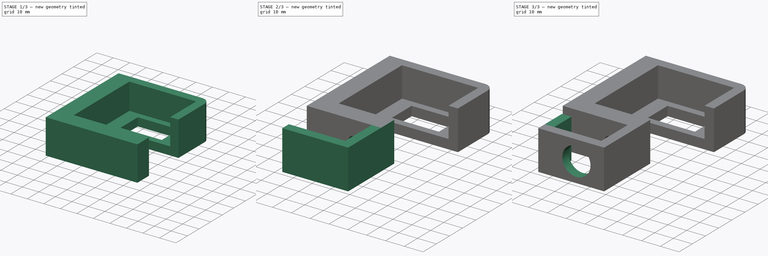
[diagram: build sequence overview — one tinted view per stage of 3, left to right]
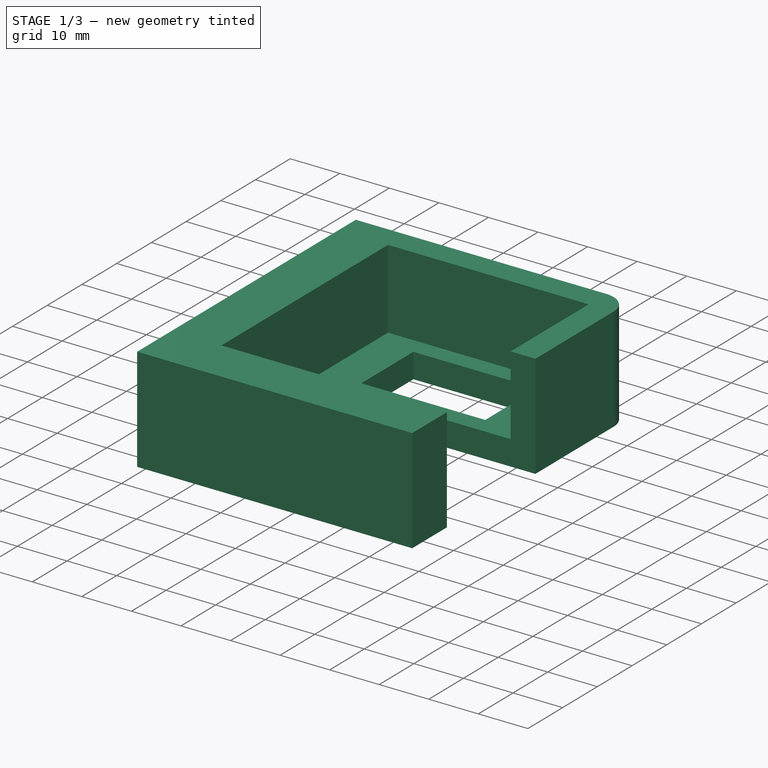
[diagram: stage 1 of 3 — iso view after this stage's code; geometry added in this stage tinted green]
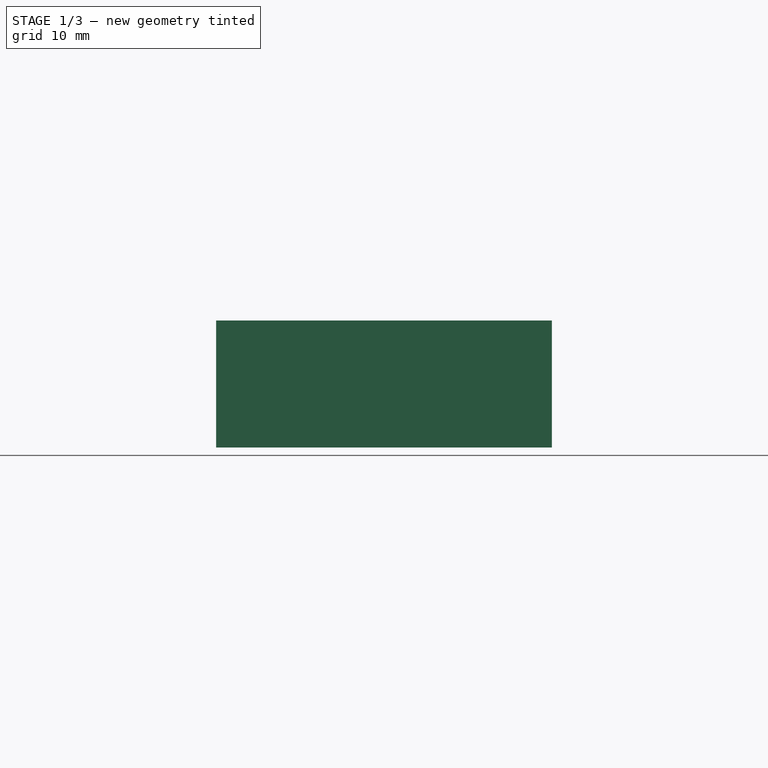
[diagram: stage 1 of 3 — front view after this stage's code; geometry added in this stage tinted green]
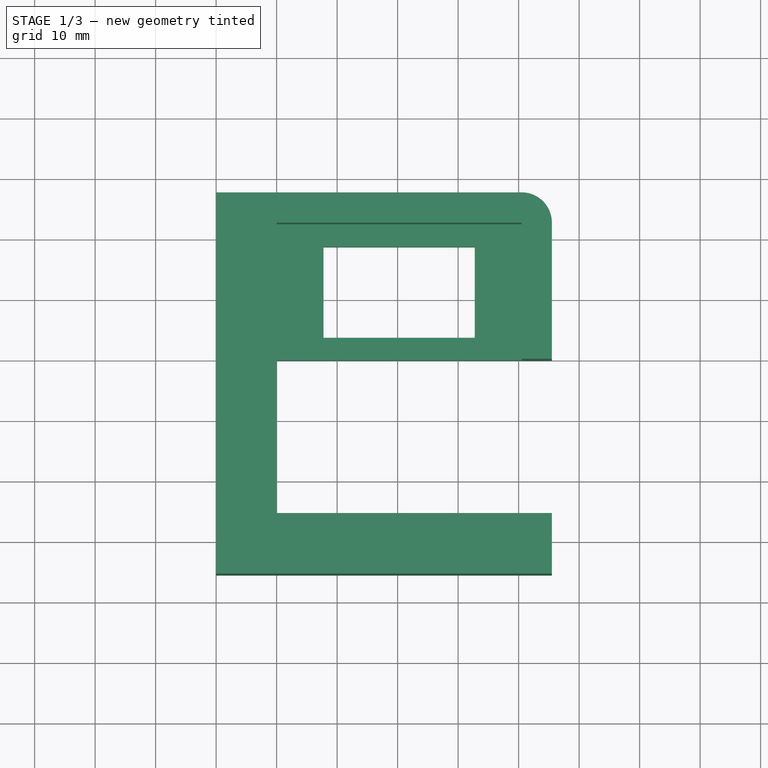
[diagram: stage 1 of 3 — top view after this stage's code; geometry added in this stage tinted green]
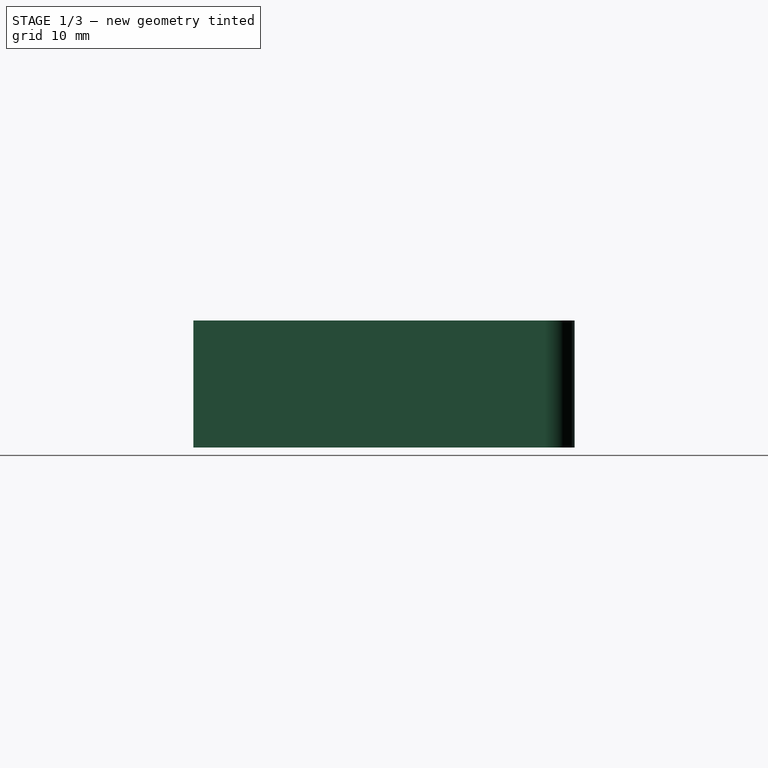
[diagram: stage 1 of 3 — right view after this stage's code; geometry added in this stage tinted green]
FCSTD DOCUMENT  (FreeCAD 0.20R)
Label: usb_hub_side_holder_rshtech_10_ports
License: All rights reserved
LicenseURL: http://en.wikipedia.org/wiki/All_rights_reserved
objects: Sketcher::SketchObject×7, PartDesign::Pad×5, PartDesign::Pocket×2, PartDesign::Body×1
note: 22 computed .brp shape members not serialized (recipe doc carries the construction recipe); baked Part::Feature solids carry a one-line shape summary decoded from their .brp

FEATURE [Sketcher::SketchObject] Sketch
  FullyConstrained = true
  MapMode = 5
  Support = -> [XY_Plane]
  sketch-geometry (24):
    g0: LineSegment StartX=0 StartY=-35.5 StartZ=0 EndX=0 EndY=27.5 EndZ=0
    g1: LineSegment StartX=0 StartY=27.5 StartZ=0 EndX=50.5 EndY=27.5 EndZ=0
    g2: LineSegment StartX=50.5 StartY=27.5 StartZ=0 EndX=50.5 EndY=22.5 EndZ=0
    g3: LineSegment StartX=55.5 StartY=22.5 StartZ=0 EndX=55.5 EndY=0 EndZ=0
    g4: LineSegment StartX=55.5 StartY=0 StartZ=0 EndX=10 EndY=0 EndZ=0
    g5: LineSegment StartX=10 StartY=0 StartZ=0 EndX=10 EndY=-25.5 EndZ=0
    g6: LineSegment StartX=10 StartY=-25.5 StartZ=0 EndX=55.5 EndY=-25.5 EndZ=0
    g7: LineSegment StartX=55.5 StartY=-25.5 StartZ=0 EndX=55.5 EndY=-35.5 EndZ=0
    g8: LineSegment StartX=55.5 StartY=-35.5 StartZ=0 EndX=0 EndY=-35.5 EndZ=0
    g9: LineSegment StartX=17.75 StartY=18.75 StartZ=0 EndX=42.75 EndY=18.75 EndZ=0
    g10: LineSegment StartX=42.75 StartY=18.75 StartZ=0 EndX=42.75 EndY=3.75 EndZ=0
    g11: LineSegment StartX=42.75 StartY=3.75 StartZ=0 EndX=17.75 EndY=3.75 EndZ=0
    g12: LineSegment StartX=17.75 StartY=3.75 StartZ=0 EndX=17.75 EndY=18.75 EndZ=0
    g13: LineSegment StartX=10 StartY=-25.5 StartZ=0 EndX=0 EndY=-25.5 EndZ=0
    g14: LineSegment StartX=10 StartY=0 StartZ=0 EndX=50.5 EndY=0 EndZ=0
    g15: LineSegment StartX=50.5 StartY=0 StartZ=0 EndX=50.5 EndY=22.5 EndZ=0
    g16: LineSegment StartX=50.5 StartY=22.5 StartZ=0 EndX=10 EndY=22.5 EndZ=0
    g17: LineSegment StartX=10 StartY=22.5 StartZ=0 EndX=10 EndY=0 EndZ=0
    g18: LineSegment StartX=17.75 StartY=18.75 StartZ=0 EndX=10 EndY=22.5 EndZ=0
    g19: LineSegment StartX=42.75 StartY=18.75 StartZ=0 EndX=50.5 EndY=22.5 EndZ=0
    g20: LineSegment StartX=42.75 StartY=3.75 StartZ=0 EndX=50.5 EndY=0 EndZ=0
    g21: LineSegment StartX=55.5 StartY=22.5 StartZ=0 EndX=50.5 EndY=22.5 EndZ=0
    g22: ArcOfCircle CenterX=50.5 CenterY=22.5 CenterZ=0 NormalX=0 NormalY=0 NormalZ=1 AngleXU=0 Radius=5 StartAngle=0 EndAngle=1.5708
    g23: LineSegment StartX=55.5 StartY=-25.5 StartZ=0 EndX=55.5 EndY=0 EndZ=0
  constraints (65):
    c: PointOnObject(g0,g-2)
    c: Vertical(g0)
    c: Horizontal(g1)
    c: Coincident(g1,g0)
    c: Coincident(g2,g1)
    c: Vertical(g2)
    c: PointOnObject(g3,g-1)
    c: Vertical(g3)
    c: Coincident(g4,g3)
    c: Horizontal(g4)
    c: Coincident(g5,g4)
    c: Vertical(g5)
    c: Coincident(g6,g5)
    c: Horizontal(g6)
    c: Coincident(g7,g6)
    c: Vertical(g7)
    c: Coincident(g8,g7)
    c: Horizontal(g8)
    c: Coincident(g8,g0)
    c: Coincident(g9,g10)
    c: Coincident(g10,g11)
    c: Coincident(g11,g12)
    c: Coincident(g12,g9)
    c: Horizontal(g9)
    c: Horizontal(g11)
    c: Vertical(g10)
    c: Vertical(g12)
    c: Distance(g9) = 25
    c: Distance(g10) = 15
    c: Distance(g7) = 10
    c: Coincident(g13,g5)
    c: PointOnObject(g13,g0)
    c: Horizontal(g13)
    c: Distance(g13) = 10
    c: Coincident(g14,g15)
    c: Coincident(g15,g16)
    c: Coincident(g16,g17)
    c: Coincident(g17,g14)
    c: Horizontal(g14)
    c: Horizontal(g16)
    c: Vertical(g15)
    c: Vertical(g17)
    c: Coincident(g14,g4)
    c: Distance(g16) = 40.5
    c: Distance(g15) = 22.5
    c: Coincident(g18,g9)
    c: Coincident(g18,g16)
    c: Coincident(g19,g15)
    c: Coincident(g20,g10)
    c: Coincident(g20,g14)
    c: Equal(g19,g20)
    c: Equal(g20,g18)
    c: Coincident(g21,g2)
    c: Horizontal(g21)
    c: Coincident(g9,g19)
    c: Coincident(g2,g15)
    c: Coincident(g3,g21)
    c: Coincident(g22,g2)
    c: Coincident(g22,g1)
    c: Coincident(g22,g3)
    c: Distance(g21) = 5
    c: Distance(g5) = 25.5
    c: Coincident(g23,g6)
    c: Coincident(g23,g3)
    c: Vertical(g23)
FEATURE [PartDesign::Pad] Pad
  Direction = (0,0,1)
  Length = 5
  Length2 = 10
  Profile = -> Sketch
  ReferenceAxis = -> Sketch [N_Axis]
  Type = 0
FEATURE [Sketcher::SketchObject] Sketch001
  ExternalGeometry = -> [Pad]
  FullyConstrained = true
  MapMode = 5
  Placement = pos=(0,0,5) rot=(0,0,1;0rad)
  Support = -> [Pad]
  sketch-geometry (11):
    g0: LineSegment StartX=55.5 StartY=22.5 StartZ=0 EndX=55.5 EndY=0 EndZ=0
    g1: LineSegment StartX=55.5 StartY=0 StartZ=0 EndX=50.5 EndY=0 EndZ=0
    g2: LineSegment StartX=50.5 StartY=0 StartZ=0 EndX=50.5 EndY=22.5 EndZ=0
    g3: LineSegment StartX=50.5 StartY=22.5 StartZ=0 EndX=10 EndY=22.5 EndZ=0
    g4: LineSegment StartX=10 StartY=22.5 StartZ=0 EndX=10 EndY=-25.5 EndZ=0
    g5: ArcOfCircle CenterX=50.5 CenterY=22.5 CenterZ=0 NormalX=0 NormalY=0 NormalZ=1 AngleXU=0 Radius=5 StartAngle=1.18914e-11 EndAngle=1.5708
    g6: LineSegment StartX=50.5 StartY=27.5 StartZ=0 EndX=0 EndY=27.5 EndZ=0
    g7: LineSegment StartX=0 StartY=27.5 StartZ=0 EndX=0 EndY=-35.5 EndZ=0
    g8: LineSegment StartX=0 StartY=-35.5 StartZ=0 EndX=55.5 EndY=-35.5 EndZ=0
    g9: LineSegment StartX=55.5 StartY=-35.5 StartZ=0 EndX=55.5 EndY=-25.5 EndZ=0
    g10: LineSegment StartX=55.5 StartY=-25.5 StartZ=0 EndX=10 EndY=-25.5 EndZ=0
  constraints (25):
    c: Coincident(g-7,g0)
    c: Coincident(g0,g-7)
    c: Coincident(g0,g1)
    c: Horizontal(g1)
    c: Coincident(g1,g2)
    c: Coincident(g2,g-4)
    c: Vertical(g2)
    c: Coincident(g2,g3)
    c: Horizontal(g3)
    c: Coincident(g3,g4)
    c: Coincident(g4,g-5)
    c: Vertical(g4)
    c: PointOnObject(g5,g2)
    c: Coincident(g5,g0)
    c: Coincident(g5,g-8)
    c: Tangent(g5,g6) = -1.5708
    c: Coincident(g6,g7)
    c: Vertical(g7)
    c: Coincident(g7,g8)
    c: Coincident(g8,g-6)
    c: Coincident(g8,g9)
    c: Coincident(g9,g-5)
    c: Coincident(g9,g10)
    c: Coincident(g10,g4)
    c: Coincident(g7,g-6)
FEATURE [PartDesign::Pad] Pad001
  BaseFeature = -> Pad
  Direction = (0,0,1)
  Length = 16
  Length2 = 10
  Profile = -> Sketch001
  ReferenceAxis = -> Sketch001 [N_Axis]
  Type = 0
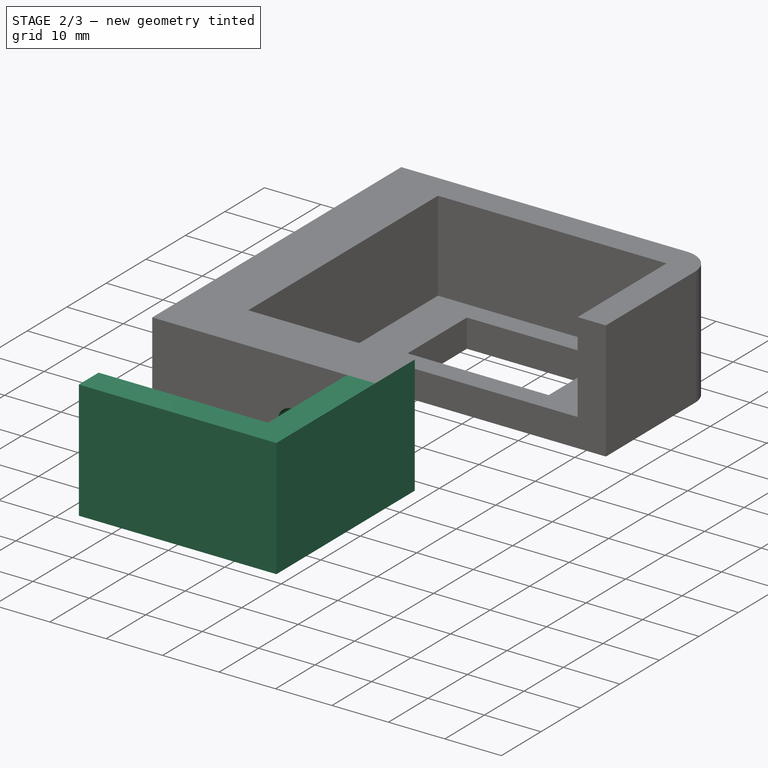
[diagram: stage 2 of 3 — iso view after this stage's code; geometry added in this stage tinted green]
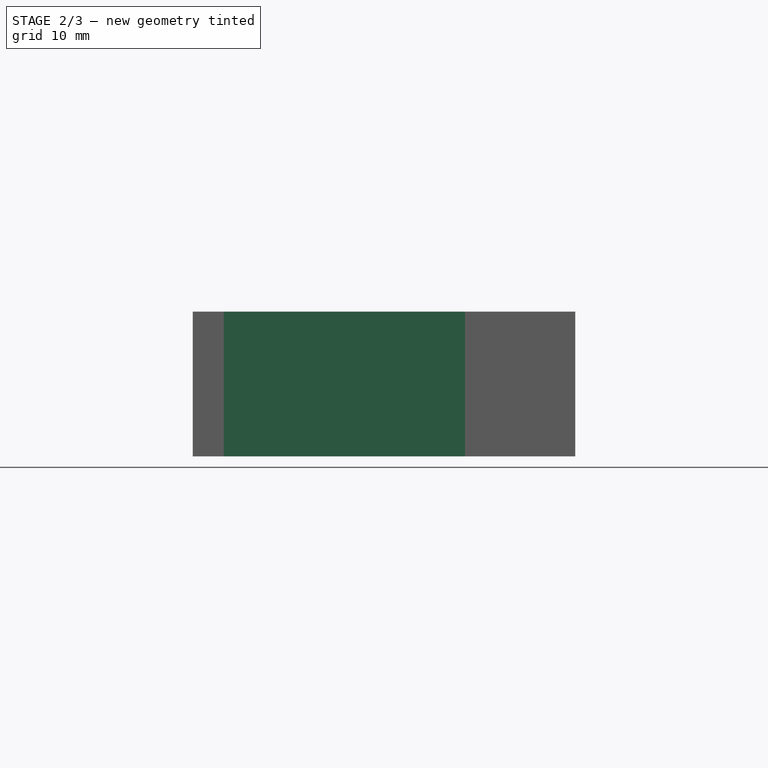
[diagram: stage 2 of 3 — front view after this stage's code; geometry added in this stage tinted green]
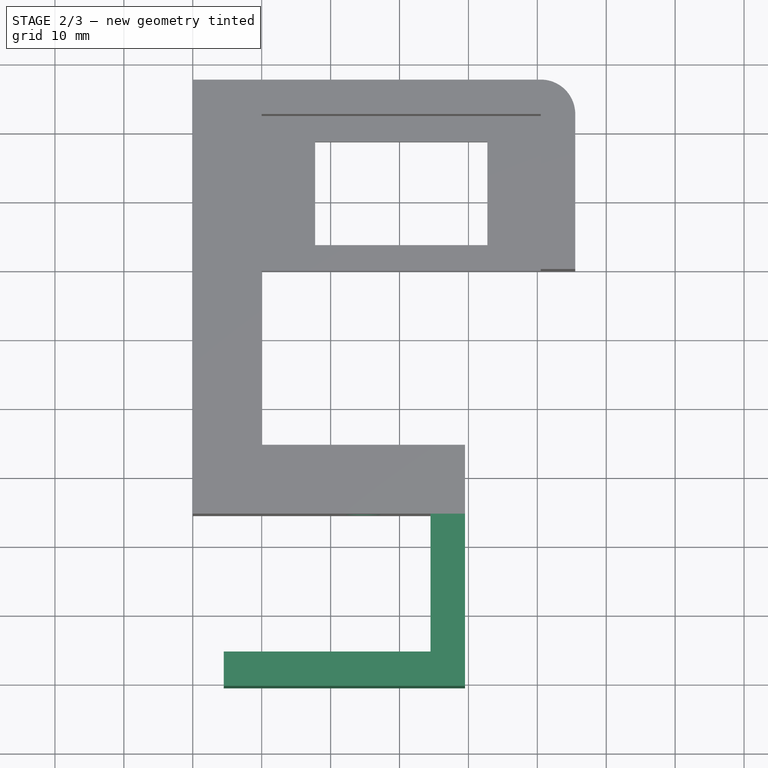
[diagram: stage 2 of 3 — top view after this stage's code; geometry added in this stage tinted green]
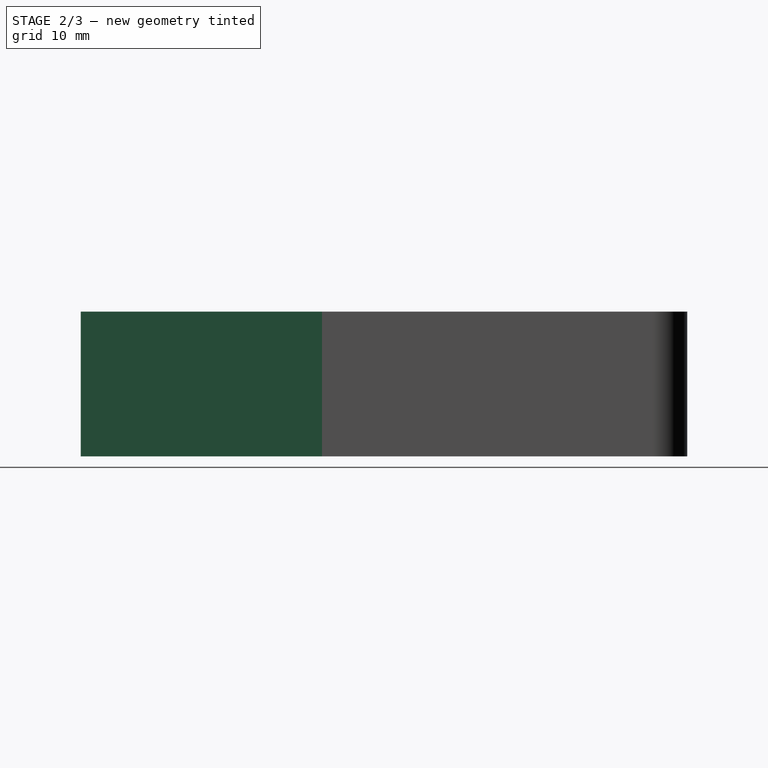
[diagram: stage 2 of 3 — right view after this stage's code; geometry added in this stage tinted green]
FEATURE [Sketcher::SketchObject] Sketch002
  ExternalGeometry = -> [Pad001]
  FullyConstrained = true
  MapMode = 5
  Placement = pos=(0,-35.5,0) rot=(1,0,0;1.5708rad)
  Support = -> [Pad001]
  sketch-geometry (8):
    g0: LineSegment StartX=55.5 StartY=21 StartZ=0 EndX=39.5 EndY=21 EndZ=0
    g1: LineSegment StartX=39.5 StartY=21 StartZ=0 EndX=39.5 EndY=0 EndZ=0
    g2: LineSegment StartX=39.5 StartY=0 StartZ=0 EndX=55.5 EndY=0 EndZ=0
    g3: LineSegment StartX=55.5 StartY=0 StartZ=0 EndX=55.5 EndY=21 EndZ=0
    g4: LineSegment StartX=10 StartY=2.2e-15 StartZ=0 EndX=24.75 EndY=10.5 EndZ=0
    g5: LineSegment StartX=24.75 StartY=10.5 StartZ=0 EndX=39.5 EndY=21 EndZ=0
    g6: LineSegment StartX=39.5 StartY=0 StartZ=0 EndX=24.75 EndY=10.5 EndZ=0
    g7: Circle CenterX=24.75 CenterY=10.5 CenterZ=0 NormalX=0 NormalY=0 NormalZ=1 AngleXU=0 Radius=2.5
  constraints (20):
    c: Coincident(g0,g1)
    c: Coincident(g1,g2)
    c: Coincident(g2,g3)
    c: Coincident(g3,g0)
    c: Horizontal(g0)
    c: Horizontal(g2)
    c: Vertical(g1)
    c: Vertical(g3)
    c: Coincident(g0,g-3)
    c: PointOnObject(g1,g-4)
    c: Distance(g0) = 16
    c: Coincident(g4,g-6)
    c: Coincident(g5,g4)
    c: Coincident(g5,g0)
    c: Coincident(g6,g1)
    c: Coincident(g6,g4)
    c: Equal(g6,g4)
    c: Equal(g4,g5)
    c: Coincident(g7,g4)
    c: Diameter(g7) = 5
FEATURE [PartDesign::Pocket] Pocket
  BaseFeature = -> Pad001
  Direction = (0,1,-2e-16)
  Length = 15
  Length2 = 5
  Profile = -> Sketch002
  ReferenceAxis = -> Sketch002 [N_Axis]
  Type = 0
FEATURE [Sketcher::SketchObject] Sketch003
  ExternalGeometry = -> [Pocket]
  FullyConstrained = true
  MapMode = 5
  Placement = pos=(0,-35.5,0) rot=(1,0,0;1.5708rad)
  Support = -> [Pocket]
  sketch-geometry (4):
    g0: LineSegment StartX=39.5 StartY=21 StartZ=0 EndX=34.5 EndY=21 EndZ=0
    g1: LineSegment StartX=34.5 StartY=21 StartZ=0 EndX=34.5 EndY=0 EndZ=0
    g2: LineSegment StartX=34.5 StartY=0 StartZ=0 EndX=39.5 EndY=0 EndZ=0
    g3: LineSegment StartX=39.5 StartY=0 StartZ=0 EndX=39.5 EndY=21 EndZ=0
  constraints (11):
    c: Coincident(g0,g1)
    c: Coincident(g1,g2)
    c: Coincident(g2,g3)
    c: Coincident(g3,g0)
    c: Horizontal(g0)
    c: Horizontal(g2)
    c: Vertical(g1)
    c: Vertical(g3)
    c: Coincident(g0,g-3)
    c: PointOnObject(g1,g-1)
    c: Distance(g0) = 5
FEATURE [PartDesign::Pad] Pad002
  BaseFeature = -> Pocket
  Direction = (0,-1,2e-16)
  Length = 25
  Length2 = 10
  Profile = -> Sketch003
  ReferenceAxis = -> Sketch003 [N_Axis]
  Type = 0
FEATURE [Sketcher::SketchObject] Sketch004
  ExternalGeometry = -> [Pad002]
  FullyConstrained = true
  MapMode = 5
  Placement = pos=(34.5,0,0) rot=(0.57735,-0.57735,-0.57735;2.0944rad)
  Support = -> [Pad002]
  sketch-geometry (4):
    g0: LineSegment StartX=60.5 StartY=21 StartZ=0 EndX=55.5 EndY=21 EndZ=0
    g1: LineSegment StartX=55.5 StartY=21 StartZ=0 EndX=55.5 EndY=0 EndZ=0
    g2: LineSegment StartX=55.5 StartY=0 StartZ=0 EndX=60.5 EndY=0 EndZ=0
    g3: LineSegment StartX=60.5 StartY=0 StartZ=0 EndX=60.5 EndY=21 EndZ=0
  constraints (11):
    c: Coincident(g0,g1)
    c: Coincident(g1,g2)
    c: Coincident(g2,g3)
    c: Coincident(g3,g0)
    c: Horizontal(g0)
    c: Horizontal(g2)
    c: Vertical(g1)
    c: Vertical(g3)
    c: Coincident(g0,g-3)
    c: PointOnObject(g1,g-1)
    c: Distance(g0) = 5
FEATURE [PartDesign::Pad] Pad003
  BaseFeature = -> Pad002
  Direction = (-1,0,0)
  Length = 30
  Length2 = 10
  Profile = -> Sketch004
  ReferenceAxis = -> Sketch004 [N_Axis]
  Type = 0
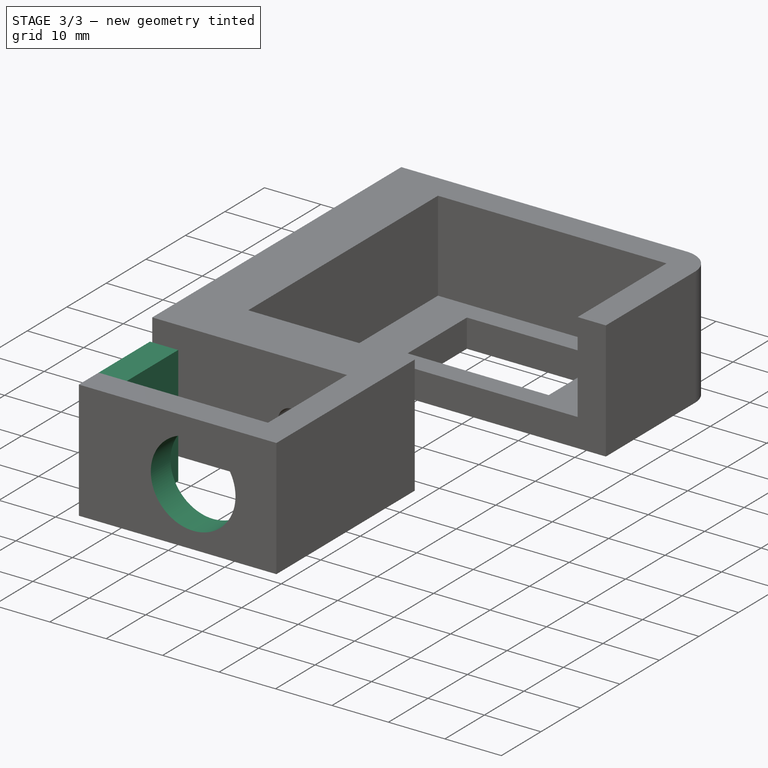
[diagram: stage 3 of 3 — iso view after this stage's code; geometry added in this stage tinted green]
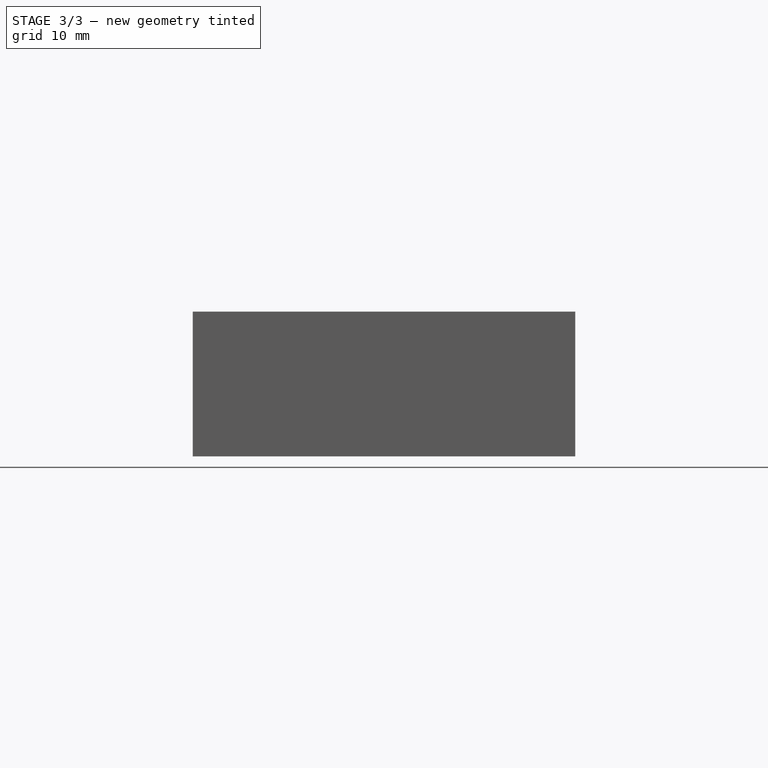
[diagram: stage 3 of 3 — front view after this stage's code; geometry added in this stage tinted green]
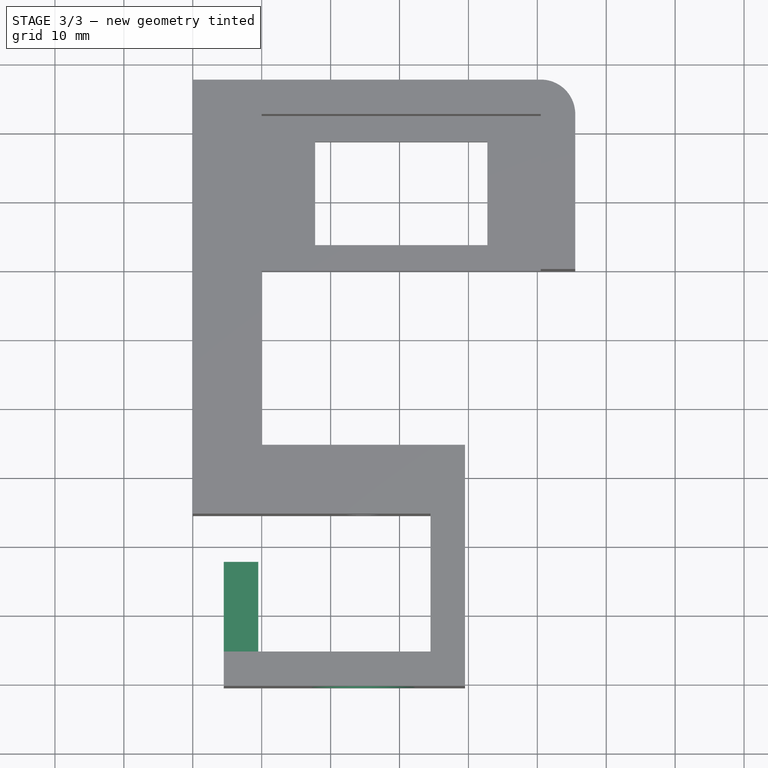
[diagram: stage 3 of 3 — top view after this stage's code; geometry added in this stage tinted green]
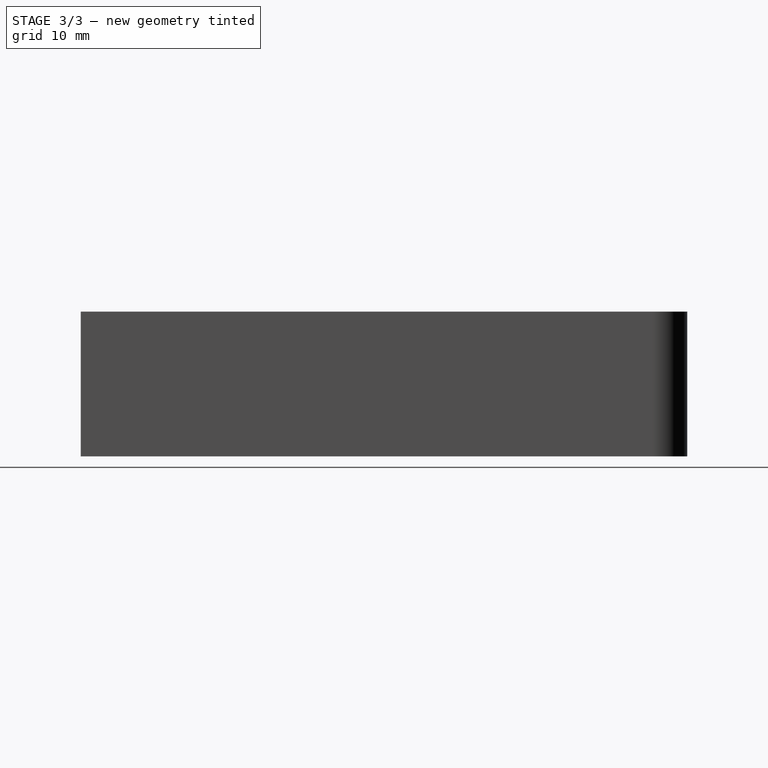
[diagram: stage 3 of 3 — right view after this stage's code; geometry added in this stage tinted green]
FEATURE [Sketcher::SketchObject] Sketch005
  ExternalGeometry = -> [Pad003]
  FullyConstrained = true
  MapMode = 5
  Placement = pos=(0,-55.5,0) rot=(0,0.707107,0.707107;3.14159rad)
  Support = -> [Pad003]
  sketch-geometry (4):
    g0: LineSegment StartX=-4.5 StartY=21 StartZ=0 EndX=-9.5 EndY=21 EndZ=0
    g1: LineSegment StartX=-9.5 StartY=21 StartZ=0 EndX=-9.5 EndY=0 EndZ=0
    g2: LineSegment StartX=-9.5 StartY=0 StartZ=0 EndX=-4.5 EndY=0 EndZ=0
    g3: LineSegment StartX=-4.5 StartY=0 StartZ=0 EndX=-4.5 EndY=21 EndZ=0
  constraints (11):
    c: Coincident(g0,g1)
    c: Coincident(g1,g2)
    c: Coincident(g2,g3)
    c: Coincident(g3,g0)
    c: Horizontal(g0)
    c: Horizontal(g2)
    c: Vertical(g1)
    c: Vertical(g3)
    c: Coincident(g0,g-3)
    c: PointOnObject(g1,g-1)
    c: Distance(g0) = 5
FEATURE [PartDesign::Pad] Pad004
  BaseFeature = -> Pad003
  Direction = (0,1,-2e-16)
  Length = 13
  Length2 = 10
  Profile = -> Sketch005
  ReferenceAxis = -> Sketch005 [N_Axis]
  Type = 0
FEATURE [Sketcher::SketchObject] Sketch006
  ExternalGeometry = -> [Pad004]
  FullyConstrained = true
  MapMode = 5
  Placement = pos=(0,-60.5,0) rot=(1,0,0;1.5708rad)
  Support = -> [Pad004]
  sketch-geometry (1):
    g0: Circle CenterX=24.75 CenterY=10.5 CenterZ=0 NormalX=0 NormalY=0 NormalZ=1 AngleXU=0 Radius=7.5
  constraints (2):
    c: Coincident(g0,g-3)
    c: Diameter(g0) = 15
FEATURE [PartDesign::Pocket] Pocket001
  BaseFeature = -> Pad004
  Direction = (0,1,-2e-16)
  Length = 10
  Length2 = 5
  Profile = -> Sketch006
  ReferenceAxis = -> Sketch006 [N_Axis]
  Type = 0
FEATURE [PartDesign::Body] Body
  Group = -> [Sketch,Pad,Sketch001,Pad001,Sketch002,Pocket,Sketch003,Pad002,Sketch004,Pad003,Sketch005,Pad004,Sketch006,Pocket001]
  Origin = -> Origin
  Tip = -> Pocket001
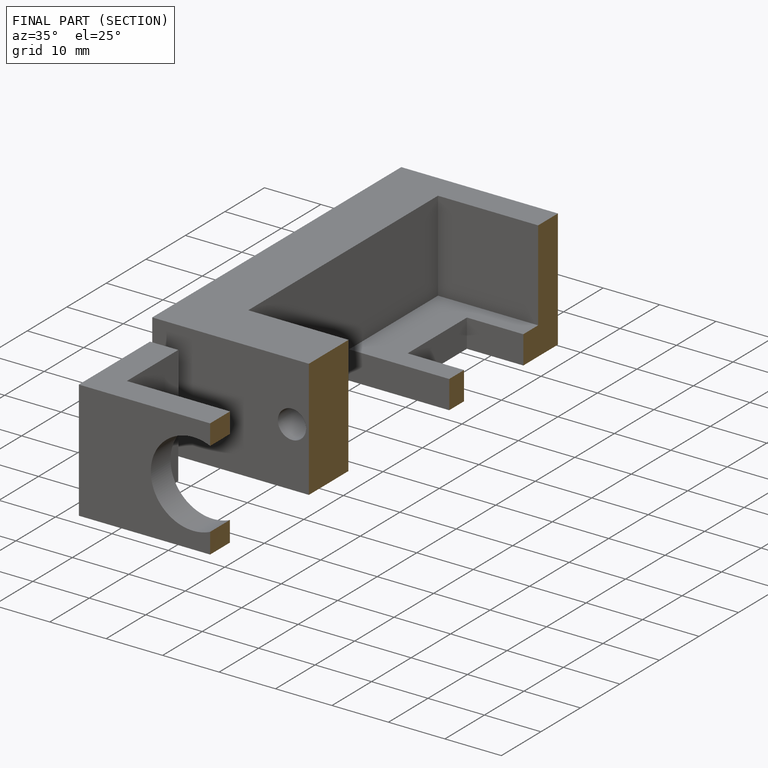
[diagram: finished part — half-section view (interior)]
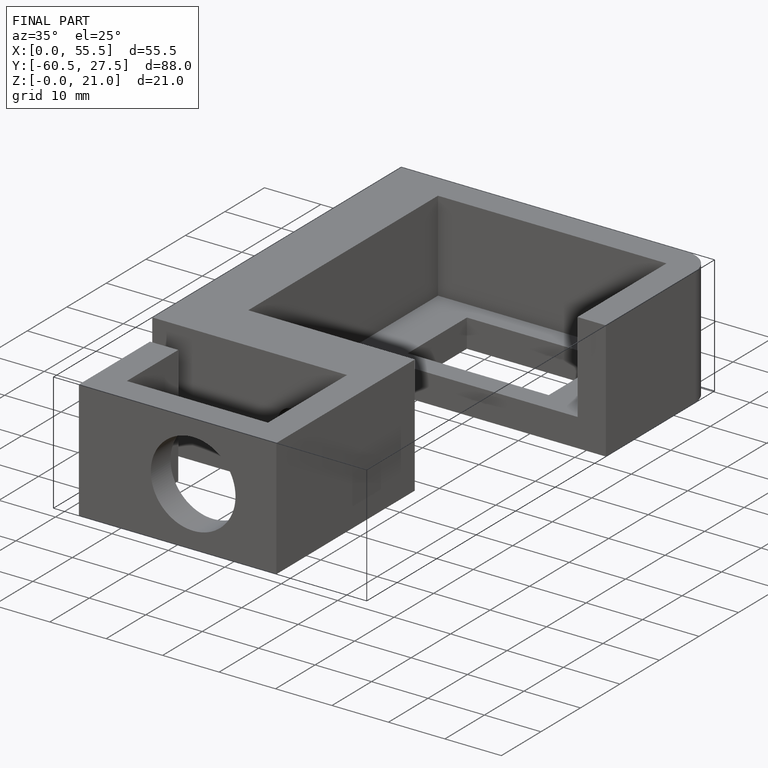
[diagram: finished part — iso view with bounding-box wireframe]
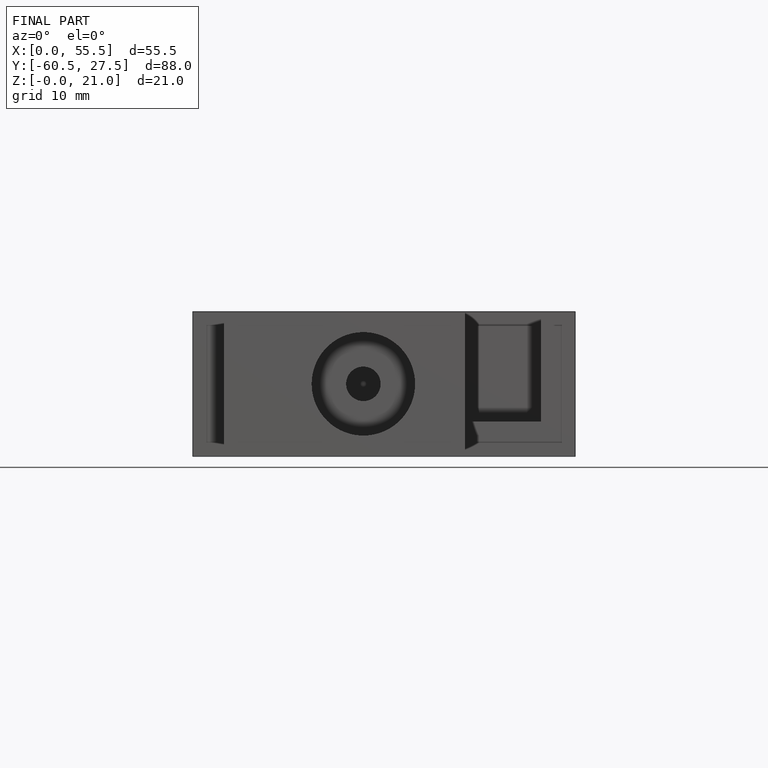
[diagram: finished part — front view with bounding-box wireframe]
